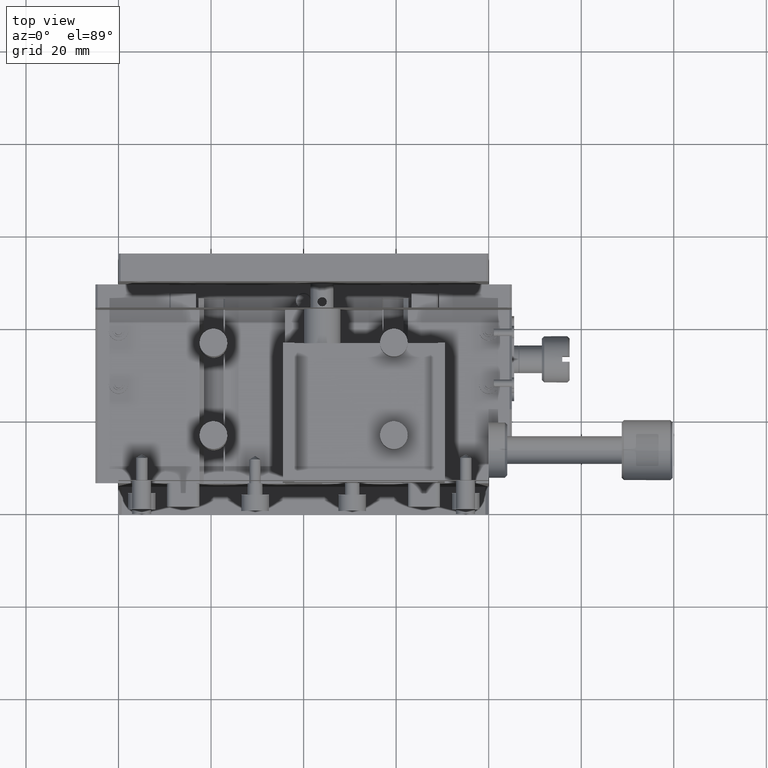
[diagram: clean part render]
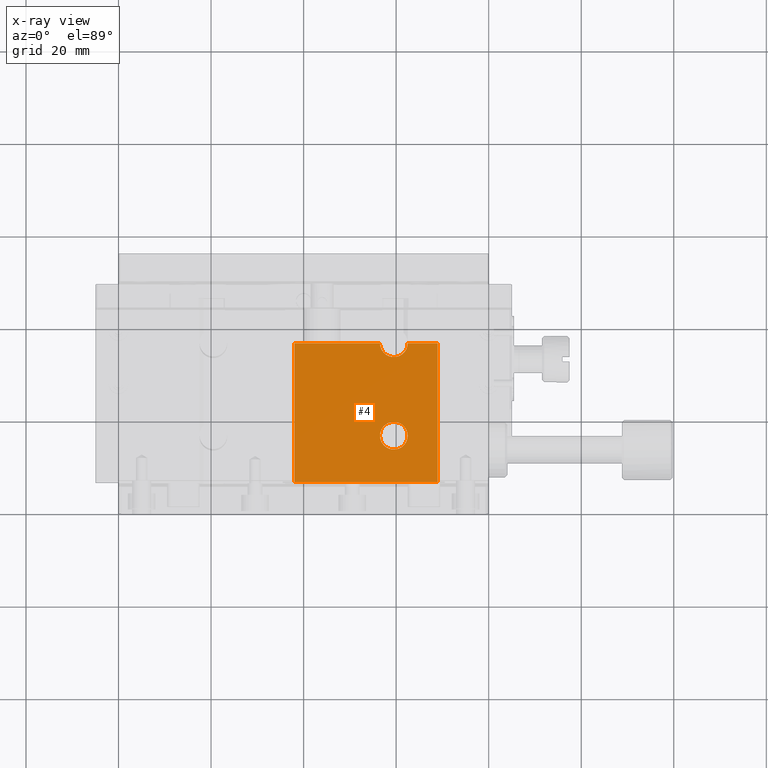
[diagram: x-ray — body ghosted, one internal face saturated and labeled with its STEP entity id]
A machine part, top view, then the same camera in x-ray: the body is ghosted and one INTERNAL B-rep face — a face not visible from any outside direction — is saturated and labeled: STEP entity #4.
In plain terms, the highlighted planar face has unit normal (0, 0, -1).
Its self-contained STEP definition (entity closure, byte-faithful):
#4 = ADVANCED_FACE ( 'NONE', ( #3592, #9157 ), #8071, .F. ) ;
#656 = VECTOR ( 'NONE', #10585, 1000.000000000000000 ) ;
#707 = VERTEX_POINT ( 'NONE', #5142 ) ;
#847 = VECTOR ( 'NONE', #9649, 1000.000000000000000 ) ;
#1164 = ORIENTED_EDGE ( 'NONE', *, *, #8513, .F. ) ;
#1524 = ORIENTED_EDGE ( 'NONE', *, *, #8727, .F. ) ;
#1979 = LINE ( 'NONE', #9327, #10825 ) ;
#2178 = DIRECTION ( 'NONE',  ( -1.000000000000000000, 0.000000000000000000, -0.000000000000000000 ) ) ;
#2236 = CARTESIAN_POINT ( 'NONE',  ( 38.00000000000000000, 36.00000000000000711, -22.00000000000000000 ) ) ;
#2488 = EDGE_CURVE ( 'NONE', #5917, #9432, #9891, .T. ) ;
#2728 = ORIENTED_EDGE ( 'NONE', *, *, #9411, .F. ) ;
#3099 = CARTESIAN_POINT ( 'NONE',  ( 62.50000000000000000, 16.00000000000000000, -22.00000000000000000 ) ) ;
#3114 = CIRCLE ( 'NONE', #10878, 2.999999999999995559 ) ;
#3178 = AXIS2_PLACEMENT_3D ( 'NONE', #8985, #6210, #5477 ) ;
#3329 = DIRECTION ( 'NONE',  ( -0.000000000000000000, -1.000000000000000000, -0.000000000000000000 ) ) ;
#3592 = FACE_OUTER_BOUND ( 'NONE', #9870, .T. ) ;
#3890 = CARTESIAN_POINT ( 'NONE',  ( 38.00000000000000000, 5.999999999999998224, -22.00000000000000000 ) ) ;
#4104 = CARTESIAN_POINT ( 'NONE',  ( 69.00000000000000000, 5.999999999999998224, -22.00000000000000355 ) ) ;
#4136 = AXIS2_PLACEMENT_3D ( 'NONE', #6413, #10104, #7444 ) ;
#4278 = EDGE_LOOP ( 'NONE', ( #1164 ) ) ;
#4675 = EDGE_CURVE ( 'NONE', #9432, #11915, #1979, .T. ) ;
#4778 = CARTESIAN_POINT ( 'NONE',  ( 62.50000000000000000, 36.00000000000000711, -22.00000000000000000 ) ) ;
#4956 = VERTEX_POINT ( 'NONE', #4778 ) ;
#5142 = CARTESIAN_POINT ( 'NONE',  ( 69.00000000000000000, 36.00000000000000711, -22.00000000000000355 ) ) ;
#5165 = LINE ( 'NONE', #9879, #11921 ) ;
#5477 = DIRECTION ( 'NONE',  ( -1.000000000000000000, 0.000000000000000000, -0.000000000000000000 ) ) ;
#5567 = CARTESIAN_POINT ( 'NONE',  ( 59.50000000000000711, 36.00000000000000711, -22.00000000000000000 ) ) ;
#5915 = ORIENTED_EDGE ( 'NONE', *, *, #4675, .F. ) ;
#5917 = VERTEX_POINT ( 'NONE', #10714 ) ;
#6210 = DIRECTION ( 'NONE',  ( 0.000000000000000000, 0.000000000000000000, -1.000000000000000000 ) ) ;
#6413 = CARTESIAN_POINT ( 'NONE',  ( 59.50000000000000711, 16.00000000000000000, -22.00000000000000000 ) ) ;
#6757 = LINE ( 'NONE', #3890, #11612 ) ;
#6842 = ORIENTED_EDGE ( 'NONE', *, *, #11577, .F. ) ;
#7444 = DIRECTION ( 'NONE',  ( 1.000000000000000000, 0.000000000000000000, 0.000000000000000000 ) ) ;
#7521 = CARTESIAN_POINT ( 'NONE',  ( 56.50000000000000000, 36.00000000000000711, -22.00000000000000000 ) ) ;
#7642 = DIRECTION ( 'NONE',  ( 1.000000000000000000, 0.000000000000000000, -0.000000000000000000 ) ) ;
#7740 = CARTESIAN_POINT ( 'NONE',  ( 38.00000000000000000, 36.00000000000000711, -22.00000000000000355 ) ) ;
#8071 = PLANE ( 'NONE',  #3178 ) ;
#8220 = DIRECTION ( 'NONE',  ( 0.000000000000000000, 0.000000000000000000, 1.000000000000000000 ) ) ;
#8513 = EDGE_CURVE ( 'NONE', #11554, #11554, #11508, .T. ) ;
#8727 = EDGE_CURVE ( 'NONE', #4956, #707, #11759, .T. ) ;
#8751 = CARTESIAN_POINT ( 'NONE',  ( 38.00000000000000000, 36.00000000000000711, -22.00000000000000000 ) ) ;
#8985 = CARTESIAN_POINT ( 'NONE',  ( 38.00000000000000000, 36.00000000000000711, -22.00000000000000000 ) ) ;
#9157 = FACE_BOUND ( 'NONE', #4278, .T. ) ;
#9327 = CARTESIAN_POINT ( 'NONE',  ( 0.000000000000000000, 36.00000000000000711, -22.00000000000000000 ) ) ;
#9411 = EDGE_CURVE ( 'NONE', #707, #10697, #5165, .T. ) ;
#9432 = VERTEX_POINT ( 'NONE', #7740 ) ;
#9649 = DIRECTION ( 'NONE',  ( 0.000000000000000000, 1.000000000000000000, 0.000000000000000000 ) ) ;
#9870 = EDGE_LOOP ( 'NONE', ( #10328, #6842, #2728, #1524, #10299, #5915 ) ) ;
#9879 = CARTESIAN_POINT ( 'NONE',  ( 69.00000000000000000, 36.00000000000000711, -22.00000000000000000 ) ) ;
#9891 = LINE ( 'NONE', #2236, #847 ) ;
#10104 = DIRECTION ( 'NONE',  ( 0.000000000000000000, 0.000000000000000000, 1.000000000000000000 ) ) ;
#10299 = ORIENTED_EDGE ( 'NONE', *, *, #10989, .F. ) ;
#10328 = ORIENTED_EDGE ( 'NONE', *, *, #2488, .F. ) ;
#10585 = DIRECTION ( 'NONE',  ( 1.000000000000000000, -0.000000000000000000, 0.000000000000000000 ) ) ;
#10697 = VERTEX_POINT ( 'NONE', #4104 ) ;
#10714 = CARTESIAN_POINT ( 'NONE',  ( 38.00000000000000000, 5.999999999999998224, -22.00000000000000355 ) ) ;
#10825 = VECTOR ( 'NONE', #7642, 1000.000000000000000 ) ;
#10878 = AXIS2_PLACEMENT_3D ( 'NONE', #5567, #8220, #11263 ) ;
#10989 = EDGE_CURVE ( 'NONE', #11915, #4956, #3114, .T. ) ;
#11263 = DIRECTION ( 'NONE',  ( 1.000000000000000000, 0.000000000000000000, 0.000000000000000000 ) ) ;
#11508 = CIRCLE ( 'NONE', #4136, 2.999999999999995559 ) ;
#11554 = VERTEX_POINT ( 'NONE', #3099 ) ;
#11577 = EDGE_CURVE ( 'NONE', #10697, #5917, #6757, .T. ) ;
#11612 = VECTOR ( 'NONE', #2178, 1000.000000000000000 ) ;
#11759 = LINE ( 'NONE', #8751, #656 ) ;
#11915 = VERTEX_POINT ( 'NONE', #7521 ) ;
#11921 = VECTOR ( 'NONE', #3329, 1000.000000000000000 ) ;